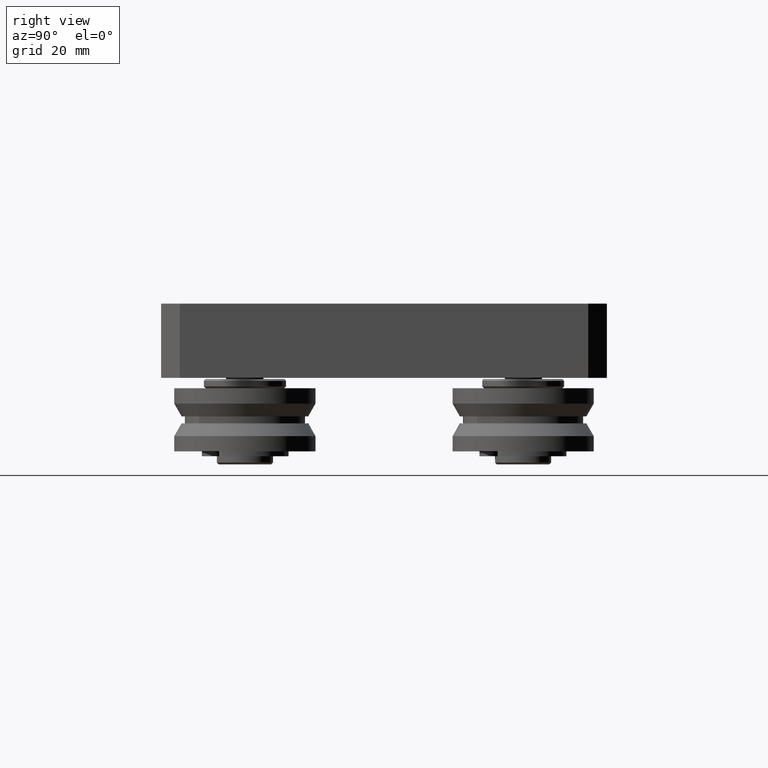
[diagram: clean part render]
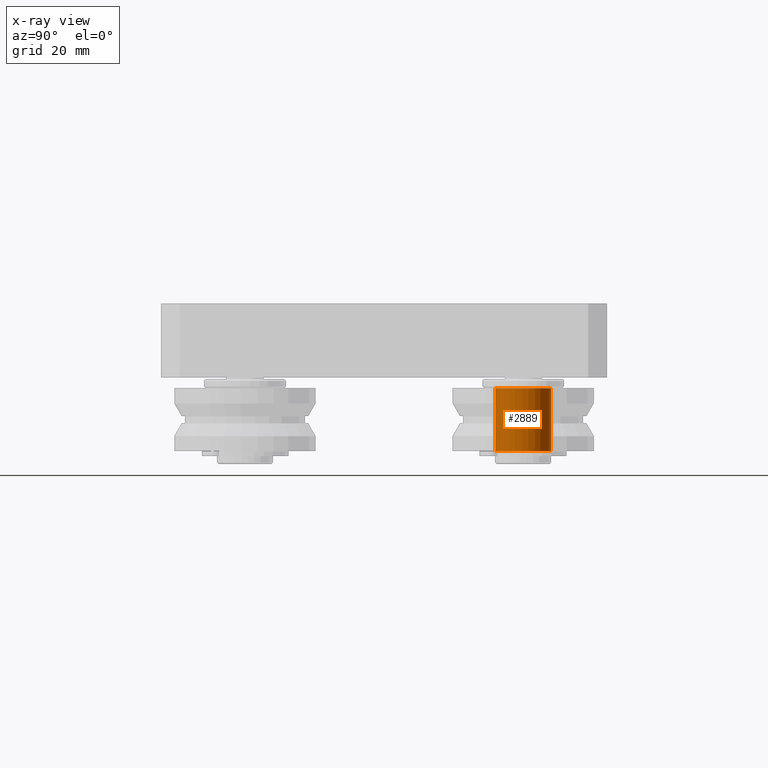
[diagram: x-ray — body ghosted, one internal face saturated and labeled with its STEP entity id]
A machine part, right view, then the same camera in x-ray: the body is ghosted and one INTERNAL B-rep face — a face not visible from any outside direction — is saturated and labeled: STEP entity #2889.
In plain terms, the highlighted cylindrical surface (bore or boss wall) has radius 7.5 mm, axis along (0, -0, 1).
Its self-contained STEP definition (entity closure, byte-faithful):
#209=CYLINDRICAL_SURFACE('',#3383,7.5);
#354=CIRCLE('',#3350,7.5);
#370=CIRCLE('',#3382,7.5);
#550=FACE_OUTER_BOUND('',#769,.T.);
#769=EDGE_LOOP('',(#2420,#2421,#2422,#2423));
#988=LINE('',#5010,#1201);
#1201=VECTOR('',#4152,7.5);
#1402=VERTEX_POINT('',#4950);
#1418=VERTEX_POINT('',#5007);
#1736=EDGE_CURVE('',#1402,#1402,#354,.T.);
#1761=EDGE_CURVE('',#1418,#1418,#370,.T.);
#1762=EDGE_CURVE('',#1418,#1402,#988,.T.);
#2420=ORIENTED_EDGE('',*,*,#1761,.T.);
#2421=ORIENTED_EDGE('',*,*,#1762,.T.);
#2422=ORIENTED_EDGE('',*,*,#1736,.F.);
#2423=ORIENTED_EDGE('',*,*,#1762,.F.);
#2889=ADVANCED_FACE('',(#550),#209,.F.);
#3350=AXIS2_PLACEMENT_3D('',#4951,#4075,#4076);
#3382=AXIS2_PLACEMENT_3D('',#5008,#4148,#4149);
#3383=AXIS2_PLACEMENT_3D('',#5009,#4150,#4151);
#4075=DIRECTION('center_axis',(1.,0.,0.));
#4076=DIRECTION('ref_axis',(0.,1.,0.));
#4148=DIRECTION('center_axis',(1.,0.,0.));
#4149=DIRECTION('ref_axis',(0.,1.,0.));
#4150=DIRECTION('center_axis',(1.,0.,0.));
#4151=DIRECTION('ref_axis',(0.,1.,0.));
#4152=DIRECTION('',(-1.,0.,0.));
#4950=CARTESIAN_POINT('',(-8.5,-7.5,-9.18485099360515E-16));
#4951=CARTESIAN_POINT('Origin',(-8.5,0.,0.));
#5007=CARTESIAN_POINT('',(8.5,-7.5,-9.18485099360515E-16));
#5008=CARTESIAN_POINT('Origin',(8.5,0.,0.));
#5009=CARTESIAN_POINT('Origin',(-2.22044604925031E-15,0.,0.));
#5010=CARTESIAN_POINT('',(-2.22044604925031E-15,-7.5,-9.18485099360515E-16));